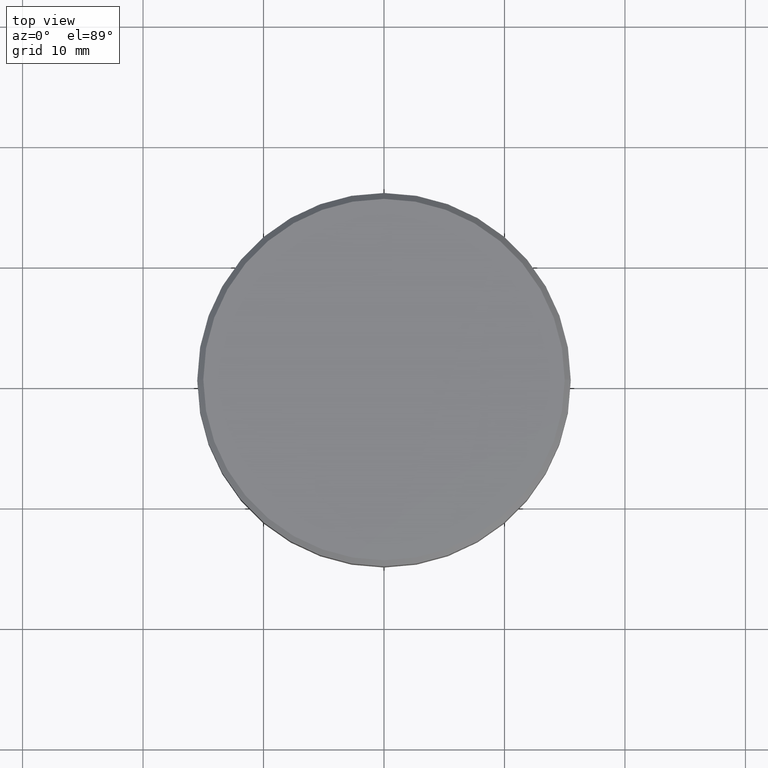
[diagram: clean part render]
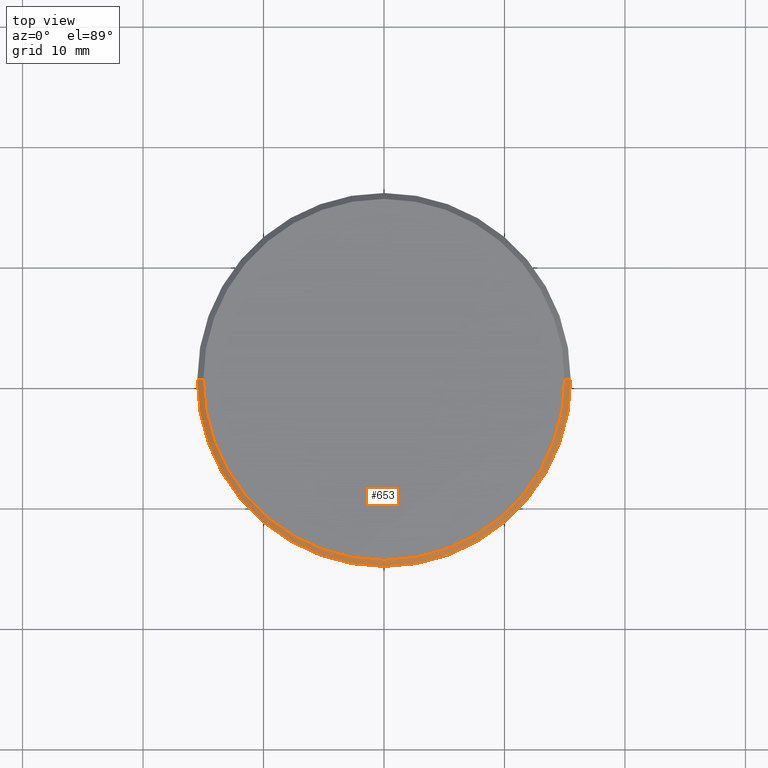
[diagram: same view with one face highlighted and labeled with its STEP entity id]
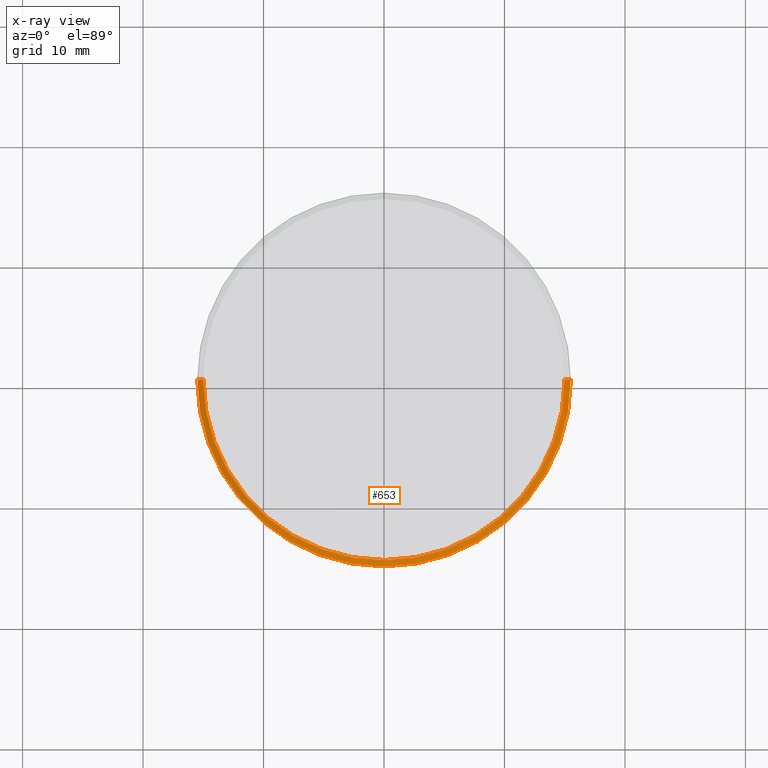
[diagram: x-ray of the same camera — body ghosted, the highlighted face saturated]
A machine part, top view. The second image highlights one B-rep face of the part: STEP entity #653.
The next image is the same camera in x-ray: the body ghosted, the highlighted face saturated — about 0% of this face is hidden behind the body in this view.
In plain terms, the highlighted conical surface has half-angle 45 deg.
Its self-contained STEP definition (entity closure, byte-faithful):
#30 = CARTESIAN_POINT ( 'NONE',  ( 15.50000000000000000, 0.000000000000000000, -0.4999999999999987232 ) ) ;
#47 = DIRECTION ( 'NONE',  ( 0.7071067811865487940, 8.659560562354950115E-17, -0.7071067811865463515 ) ) ;
#74 = DIRECTION ( 'NONE',  ( -1.000000000000000000, 0.000000000000000000, 0.000000000000000000 ) ) ;
#91 = DIRECTION ( 'NONE',  ( 0.000000000000000000, 0.000000000000000000, -1.000000000000000000 ) ) ;
#126 = DIRECTION ( 'NONE',  ( -0.000000000000000000, -0.000000000000000000, 1.000000000000000000 ) ) ;
#189 = AXIS2_PLACEMENT_3D ( 'NONE', #816, #91, #74 ) ;
#196 = ORIENTED_EDGE ( 'NONE', *, *, #611, .F. ) ;
#247 = LINE ( 'NONE', #1164, #511 ) ;
#366 = VERTEX_POINT ( 'NONE', #674 ) ;
#397 = VECTOR ( 'NONE', #47, 1000.000000000000000 ) ;
#401 = ORIENTED_EDGE ( 'NONE', *, *, #787, .F. ) ;
#429 = CARTESIAN_POINT ( 'NONE',  ( -15.50000000000000000, 1.898202538678397557E-15, -0.4999999999999987232 ) ) ;
#436 = VERTEX_POINT ( 'NONE', #30 ) ;
#482 = DIRECTION ( 'NONE',  ( 1.000000000000000000, 0.000000000000000000, 0.000000000000000000 ) ) ;
#499 = VERTEX_POINT ( 'NONE', #429 ) ;
#504 = DIRECTION ( 'NONE',  ( 0.000000000000000000, 0.000000000000000000, -1.000000000000000000 ) ) ;
#511 = VECTOR ( 'NONE', #1092, 1000.000000000000000 ) ;
#605 = AXIS2_PLACEMENT_3D ( 'NONE', #1154, #504, #1045 ) ;
#610 = ORIENTED_EDGE ( 'NONE', *, *, #700, .T. ) ;
#611 = EDGE_CURVE ( 'NONE', #963, #436, #678, .T. ) ;
#615 = EDGE_LOOP ( 'NONE', ( #196, #401, #610, #1103 ) ) ;
#653 = ADVANCED_FACE ( 'NONE', ( #707 ), #1016, .T. ) ;
#674 = CARTESIAN_POINT ( 'NONE',  ( -15.00000000000000000, 0.000000000000000000, 0.000000000000000000 ) ) ;
#678 = LINE ( 'NONE', #861, #397 ) ;
#698 = CARTESIAN_POINT ( 'NONE',  ( 15.00000000000000000, 1.867586368699713376E-15, 0.000000000000000000 ) ) ;
#700 = EDGE_CURVE ( 'NONE', #366, #499, #247, .T. ) ;
#707 = FACE_OUTER_BOUND ( 'NONE', #615, .T. ) ;
#787 = EDGE_CURVE ( 'NONE', #366, #963, #913, .T. ) ;
#806 = CARTESIAN_POINT ( 'NONE',  ( 0.000000000000000000, 0.000000000000000000, 0.000000000000000000 ) ) ;
#816 = CARTESIAN_POINT ( 'NONE',  ( 0.000000000000000000, 0.000000000000000000, 0.000000000000000000 ) ) ;
#861 = CARTESIAN_POINT ( 'NONE',  ( 15.00000000000000000, 1.836970198721029589E-15, 0.000000000000000000 ) ) ;
#913 = CIRCLE ( 'NONE', #1072, 15.00000000000000000 ) ;
#963 = VERTEX_POINT ( 'NONE', #698 ) ;
#1016 = CONICAL_SURFACE ( 'NONE', #189, 15.00000000000000000, 0.7853981633974500554 ) ;
#1019 = EDGE_CURVE ( 'NONE', #436, #499, #1088, .T. ) ;
#1045 = DIRECTION ( 'NONE',  ( 1.000000000000000000, 0.000000000000000000, 0.000000000000000000 ) ) ;
#1072 = AXIS2_PLACEMENT_3D ( 'NONE', #806, #126, #482 ) ;
#1088 = CIRCLE ( 'NONE', #605, 15.50000000000000000 ) ;
#1092 = DIRECTION ( 'NONE',  ( -0.7071067811865487940, 0.000000000000000000, -0.7071067811865463515 ) ) ;
#1103 = ORIENTED_EDGE ( 'NONE', *, *, #1019, .F. ) ;
#1154 = CARTESIAN_POINT ( 'NONE',  ( 0.000000000000000000, 0.000000000000000000, -0.4999999999999987232 ) ) ;
#1164 = CARTESIAN_POINT ( 'NONE',  ( -15.00000000000000000, 0.000000000000000000, 0.000000000000000000 ) ) ;